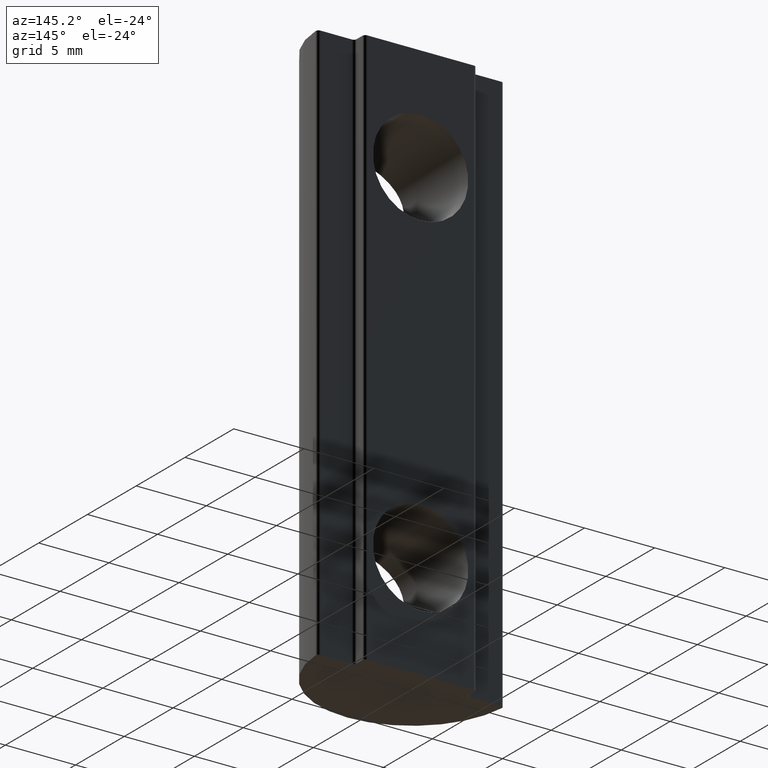
[diagram: clean part render]
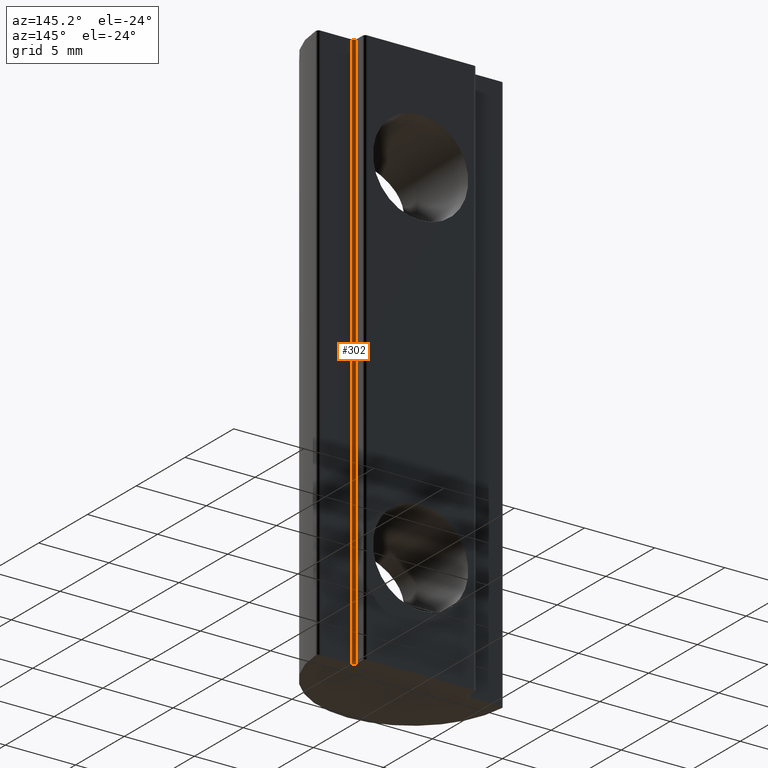
[diagram: same view with one face highlighted and labeled with its STEP entity id]
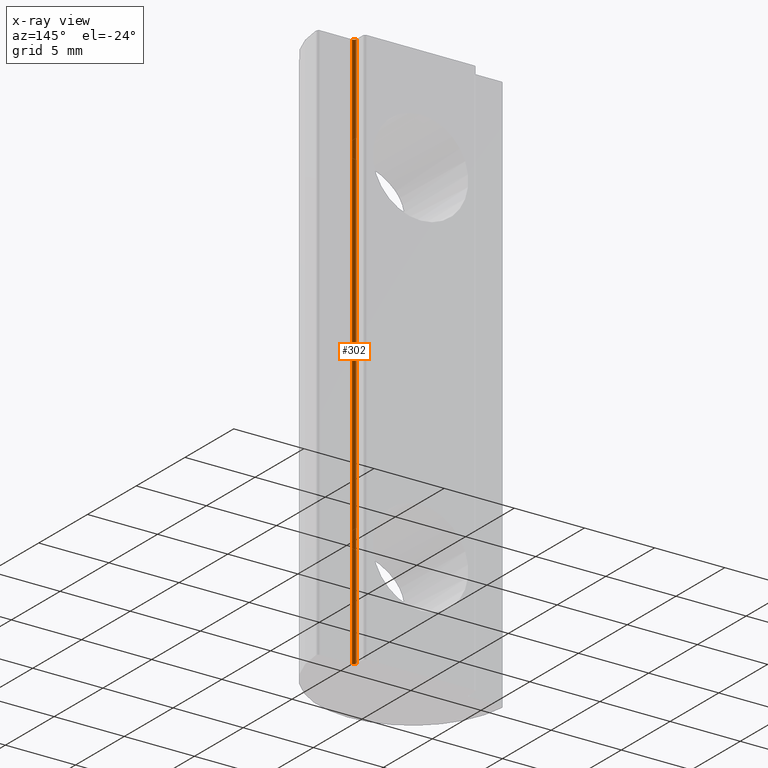
[diagram: x-ray of the same camera — body ghosted, the highlighted face saturated]
A machine part, auxiliary view. The second image highlights one B-rep face of the part: STEP entity #302.
The next image is the same camera in x-ray: the body ghosted, the highlighted face saturated — about 0% of this face is hidden behind the body in this view.
In plain terms, the highlighted cylindrical surface (edge-blend (fillet) strip) has radius 0.2 mm, axis along (0, 0, 1).
Its self-contained STEP definition (entity closure, byte-faithful):
#29=LINE('',#523,#51);
#35=LINE('',#535,#57);
#51=VECTOR('',#366,40.);
#57=VECTOR('',#374,40.);
#84=CIRCLE('',#325,0.2);
#88=CIRCLE('',#330,0.2);
#105=FACE_OUTER_BOUND('',#127,.T.);
#127=EDGE_LOOP('',(#271,#272,#273,#274));
#142=VERTEX_POINT('',#520);
#143=VERTEX_POINT('',#522);
#145=VERTEX_POINT('',#528);
#148=VERTEX_POINT('',#533);
#171=EDGE_CURVE('',#142,#143,#29,.T.);
#177=EDGE_CURVE('',#148,#145,#35,.T.);
#192=EDGE_CURVE('',#143,#148,#84,.T.);
#196=EDGE_CURVE('',#145,#142,#88,.T.);
#271=ORIENTED_EDGE('',*,*,#192,.F.);
#272=ORIENTED_EDGE('',*,*,#171,.F.);
#273=ORIENTED_EDGE('',*,*,#196,.F.);
#274=ORIENTED_EDGE('',*,*,#177,.F.);
#286=CYLINDRICAL_SURFACE('',#336,0.2);
#302=ADVANCED_FACE('',(#105),#286,.F.);
#325=AXIS2_PLACEMENT_3D('',#564,#400,#401);
#330=AXIS2_PLACEMENT_3D('',#569,#410,#411);
#336=AXIS2_PLACEMENT_3D('',#575,#422,#423);
#366=DIRECTION('',(0.,0.,1.));
#374=DIRECTION('',(0.,0.,-1.));
#400=DIRECTION('center_axis',(0.,0.,-1.));
#401=DIRECTION('ref_axis',(1.,0.,0.));
#410=DIRECTION('center_axis',(0.,0.,1.));
#411=DIRECTION('ref_axis',(1.,0.,0.));
#422=DIRECTION('center_axis',(0.,0.,1.));
#423=DIRECTION('ref_axis',(1.,0.,0.));
#520=CARTESIAN_POINT('',(4.2,0.,0.));
#522=CARTESIAN_POINT('',(4.2,0.,40.));
#523=CARTESIAN_POINT('',(4.2,0.,40.));
#528=CARTESIAN_POINT('',(4.,0.2,0.));
#533=CARTESIAN_POINT('',(4.,0.2,40.));
#535=CARTESIAN_POINT('',(4.,0.2,0.));
#564=CARTESIAN_POINT('Origin',(4.2,0.2,40.));
#569=CARTESIAN_POINT('Origin',(4.2,0.2,0.));
#575=CARTESIAN_POINT('Origin',(4.2,0.2,40.));